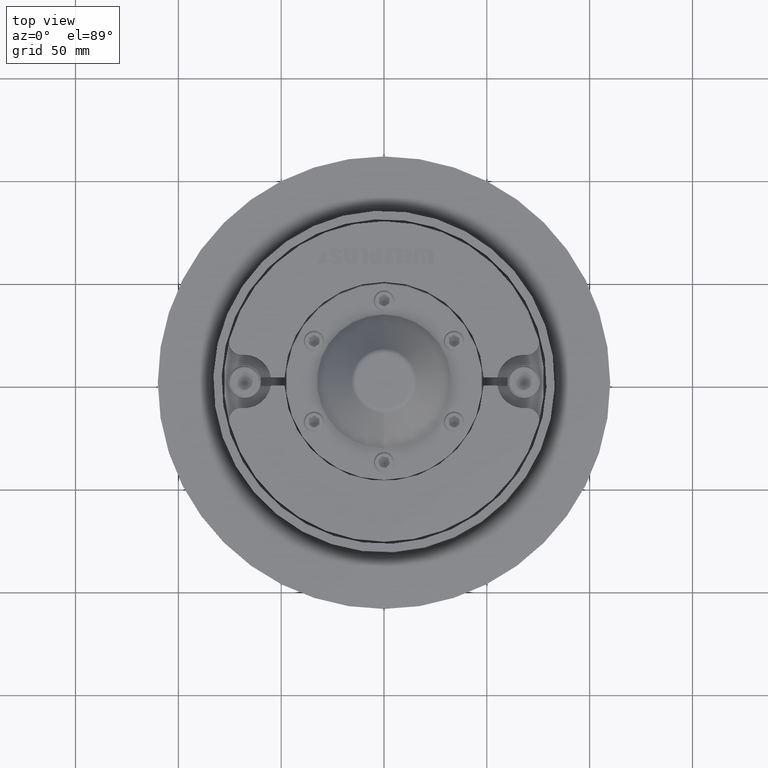
[diagram: clean part render]
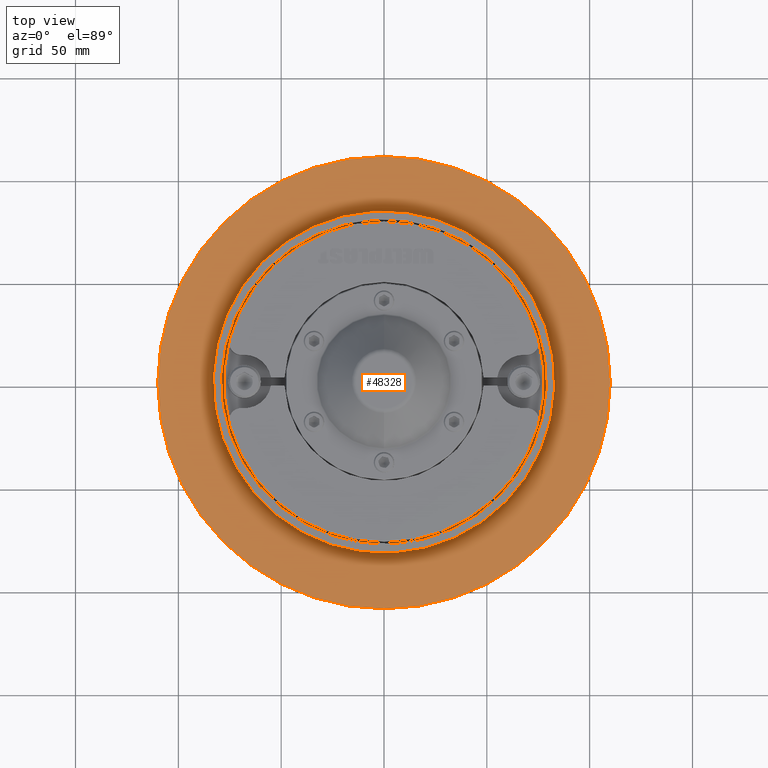
[diagram: same view with one face highlighted and labeled with its STEP entity id]
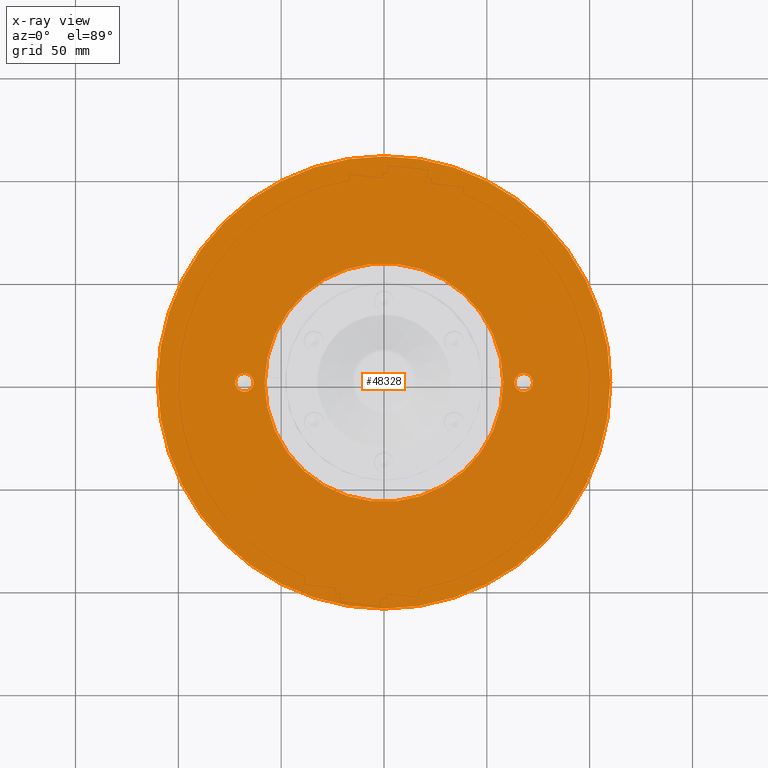
[diagram: x-ray of the same camera — body ghosted, the highlighted face saturated]
A machine part, top view. The second image highlights one B-rep face of the part: STEP entity #48328.
The next image is the same camera in x-ray: the body ghosted, the highlighted face saturated — about 0% of this face is hidden behind the body in this view.
In plain terms, the highlighted planar face has unit normal (0, 0, 1).
Its self-contained STEP definition (entity closure, byte-faithful):
#238 = AXIS2_PLACEMENT_3D ( 'NONE', #31515, #4277, #36066 ) ;
#306 = FACE_BOUND ( 'NONE', #3516, .T. ) ;
#396 = CARTESIAN_POINT ( 'NONE',  ( -63.39999999999999858, 5.510910596163096458E-16, 4.000000000000000000 ) ) ;
#400 = EDGE_CURVE ( 'NONE', #16945, #19864, #39561, .T. ) ;
#584 = DIRECTION ( 'NONE',  ( 0.0000000000000000000, 0.0000000000000000000, 1.000000000000000000 ) ) ;
#1338 = CARTESIAN_POINT ( 'NONE',  ( -58.00000000000000000, 0.0000000000000000000, 4.000000000000000000 ) ) ;
#2042 = CARTESIAN_POINT ( 'NONE',  ( 58.00000000000000000, 7.102951435054648059E-15, 4.000000000000000000 ) ) ;
#3133 = DIRECTION ( 'NONE',  ( 0.0000000000000000000, 0.0000000000000000000, 1.000000000000000000 ) ) ;
#3153 = CIRCLE ( 'NONE', #44894, 4.500000000000003553 ) ;
#3504 = DIRECTION ( 'NONE',  ( 1.000000000000000000, 0.0000000000000000000, 0.0000000000000000000 ) ) ;
#3516 = EDGE_LOOP ( 'NONE', ( #36605, #44332 ) ) ;
#4044 = AXIS2_PLACEMENT_3D ( 'NONE', #41985, #14749, #46557 ) ;
#4277 = DIRECTION ( 'NONE',  ( 0.0000000000000000000, 0.0000000000000000000, 1.000000000000000000 ) ) ;
#4355 = DIRECTION ( 'NONE',  ( 0.0000000000000000000, 0.0000000000000000000, 1.000000000000000000 ) ) ;
#6048 = AXIS2_PLACEMENT_3D ( 'NONE', #34356, #3133, #34937 ) ;
#6605 = AXIS2_PLACEMENT_3D ( 'NONE', #22241, #54046, #26797 ) ;
#6955 = VERTEX_POINT ( 'NONE', #24906 ) ;
#11086 = EDGE_LOOP ( 'NONE', ( #47771, #52063 ) ) ;
#11481 = DIRECTION ( 'NONE',  ( 0.0000000000000000000, 0.0000000000000000000, 1.000000000000000000 ) ) ;
#12132 = EDGE_CURVE ( 'NONE', #52775, #35087, #29881, .T. ) ;
#12919 = CIRCLE ( 'NONE', #40232, 110.0000000000000000 ) ;
#14749 = DIRECTION ( 'NONE',  ( 0.0000000000000000000, 0.0000000000000000000, 1.000000000000000000 ) ) ;
#16677 = PLANE ( 'NONE',  #6048 ) ;
#16945 = VERTEX_POINT ( 'NONE', #32973 ) ;
#17807 = AXIS2_PLACEMENT_3D ( 'NONE', #38706, #11481, #43292 ) ;
#18765 = DIRECTION ( 'NONE',  ( 0.0000000000000000000, 0.0000000000000000000, 1.000000000000000000 ) ) ;
#19145 = AXIS2_PLACEMENT_3D ( 'NONE', #31581, #4355, #36139 ) ;
#19864 = VERTEX_POINT ( 'NONE', #47255 ) ;
#20874 = EDGE_CURVE ( 'NONE', #19864, #16945, #12919, .T. ) ;
#21712 = FACE_BOUND ( 'NONE', #25275, .T. ) ;
#22241 = CARTESIAN_POINT ( 'NONE',  ( 0.0000000000000000000, 0.0000000000000000000, 4.000000000000000000 ) ) ;
#22614 = ORIENTED_EDGE ( 'NONE', *, *, #23736, .F. ) ;
#23736 = EDGE_CURVE ( 'NONE', #46533, #6955, #26220, .T. ) ;
#24106 = AXIS2_PLACEMENT_3D ( 'NONE', #45963, #18765, #50541 ) ;
#24340 = VERTEX_POINT ( 'NONE', #2042 ) ;
#24906 = CARTESIAN_POINT ( 'NONE',  ( 72.40000000000000568, 5.510910596163096458E-16, 4.000000000000000000 ) ) ;
#25275 = EDGE_LOOP ( 'NONE', ( #22614, #54298 ) ) ;
#26220 = CIRCLE ( 'NONE', #4044, 4.500000000000003553 ) ;
#26797 = DIRECTION ( 'NONE',  ( 1.000000000000000000, 0.0000000000000000000, 0.0000000000000000000 ) ) ;
#27849 = CARTESIAN_POINT ( 'NONE',  ( 0.0000000000000000000, 0.0000000000000000000, 4.000000000000000000 ) ) ;
#29208 = EDGE_CURVE ( 'NONE', #24340, #47206, #32035, .T. ) ;
#29881 = CIRCLE ( 'NONE', #238, 4.500000000000003553 ) ;
#30732 = DIRECTION ( 'NONE',  ( 0.0000000000000000000, 0.0000000000000000000, 1.000000000000000000 ) ) ;
#31515 = CARTESIAN_POINT ( 'NONE',  ( -67.90000000000000568, 0.0000000000000000000, 4.000000000000000000 ) ) ;
#31581 = CARTESIAN_POINT ( 'NONE',  ( 0.0000000000000000000, 0.0000000000000000000, 4.000000000000000000 ) ) ;
#32035 = CIRCLE ( 'NONE', #19145, 58.00000000000000000 ) ;
#32400 = DIRECTION ( 'NONE',  ( 1.000000000000000000, 0.0000000000000000000, 0.0000000000000000000 ) ) ;
#32973 = CARTESIAN_POINT ( 'NONE',  ( -110.0000000000000000, 0.0000000000000000000, 4.000000000000000000 ) ) ;
#33480 = ORIENTED_EDGE ( 'NONE', *, *, #51184, .F. ) ;
#33751 = FACE_BOUND ( 'NONE', #55881, .T. ) ;
#34356 = CARTESIAN_POINT ( 'NONE',  ( 0.0000000000000000000, 0.0000000000000000000, 4.000000000000000000 ) ) ;
#34937 = DIRECTION ( 'NONE',  ( 1.000000000000000000, 0.0000000000000000000, -0.0000000000000000000 ) ) ;
#35087 = VERTEX_POINT ( 'NONE', #396 ) ;
#36066 = DIRECTION ( 'NONE',  ( 1.000000000000000000, 0.0000000000000000000, 0.0000000000000000000 ) ) ;
#36139 = DIRECTION ( 'NONE',  ( 1.000000000000000000, 0.0000000000000000000, 0.0000000000000000000 ) ) ;
#36605 = ORIENTED_EDGE ( 'NONE', *, *, #12132, .F. ) ;
#38706 = CARTESIAN_POINT ( 'NONE',  ( 67.90000000000000568, 0.0000000000000000000, 4.000000000000000000 ) ) ;
#39561 = CIRCLE ( 'NONE', #24106, 110.0000000000000000 ) ;
#40232 = AXIS2_PLACEMENT_3D ( 'NONE', #27849, #584, #32400 ) ;
#40467 = CIRCLE ( 'NONE', #6605, 58.00000000000000000 ) ;
#41030 = CARTESIAN_POINT ( 'NONE',  ( 63.39999999999999858, 0.0000000000000000000, 4.000000000000000000 ) ) ;
#41985 = CARTESIAN_POINT ( 'NONE',  ( 67.90000000000000568, 0.0000000000000000000, 4.000000000000000000 ) ) ;
#43282 = CIRCLE ( 'NONE', #17807, 4.500000000000003553 ) ;
#43292 = DIRECTION ( 'NONE',  ( 1.000000000000000000, 0.0000000000000000000, 0.0000000000000000000 ) ) ;
#44332 = ORIENTED_EDGE ( 'NONE', *, *, #55528, .F. ) ;
#44613 = EDGE_CURVE ( 'NONE', #6955, #46533, #43282, .T. ) ;
#44894 = AXIS2_PLACEMENT_3D ( 'NONE', #57951, #30732, #3504 ) ;
#45860 = FACE_OUTER_BOUND ( 'NONE', #11086, .T. ) ;
#45963 = CARTESIAN_POINT ( 'NONE',  ( 0.0000000000000000000, 0.0000000000000000000, 4.000000000000000000 ) ) ;
#46533 = VERTEX_POINT ( 'NONE', #41030 ) ;
#46557 = DIRECTION ( 'NONE',  ( 1.000000000000000000, 0.0000000000000000000, 0.0000000000000000000 ) ) ;
#47206 = VERTEX_POINT ( 'NONE', #1338 ) ;
#47255 = CARTESIAN_POINT ( 'NONE',  ( 110.0000000000000000, 1.347111479062088523E-14, 4.000000000000000000 ) ) ;
#47771 = ORIENTED_EDGE ( 'NONE', *, *, #400, .T. ) ;
#48328 = ADVANCED_FACE ( 'NONE', ( #306, #45860, #33751, #21712 ), #16677, .T. ) ;
#49186 = ORIENTED_EDGE ( 'NONE', *, *, #29208, .F. ) ;
#50541 = DIRECTION ( 'NONE',  ( 1.000000000000000000, 0.0000000000000000000, 0.0000000000000000000 ) ) ;
#51184 = EDGE_CURVE ( 'NONE', #47206, #24340, #40467, .T. ) ;
#52063 = ORIENTED_EDGE ( 'NONE', *, *, #20874, .T. ) ;
#52775 = VERTEX_POINT ( 'NONE', #57131 ) ;
#54046 = DIRECTION ( 'NONE',  ( 0.0000000000000000000, 0.0000000000000000000, 1.000000000000000000 ) ) ;
#54298 = ORIENTED_EDGE ( 'NONE', *, *, #44613, .F. ) ;
#55528 = EDGE_CURVE ( 'NONE', #35087, #52775, #3153, .T. ) ;
#55881 = EDGE_LOOP ( 'NONE', ( #33480, #49186 ) ) ;
#57131 = CARTESIAN_POINT ( 'NONE',  ( -72.40000000000000568, 0.0000000000000000000, 4.000000000000000000 ) ) ;
#57951 = CARTESIAN_POINT ( 'NONE',  ( -67.90000000000000568, 0.0000000000000000000, 4.000000000000000000 ) ) ;